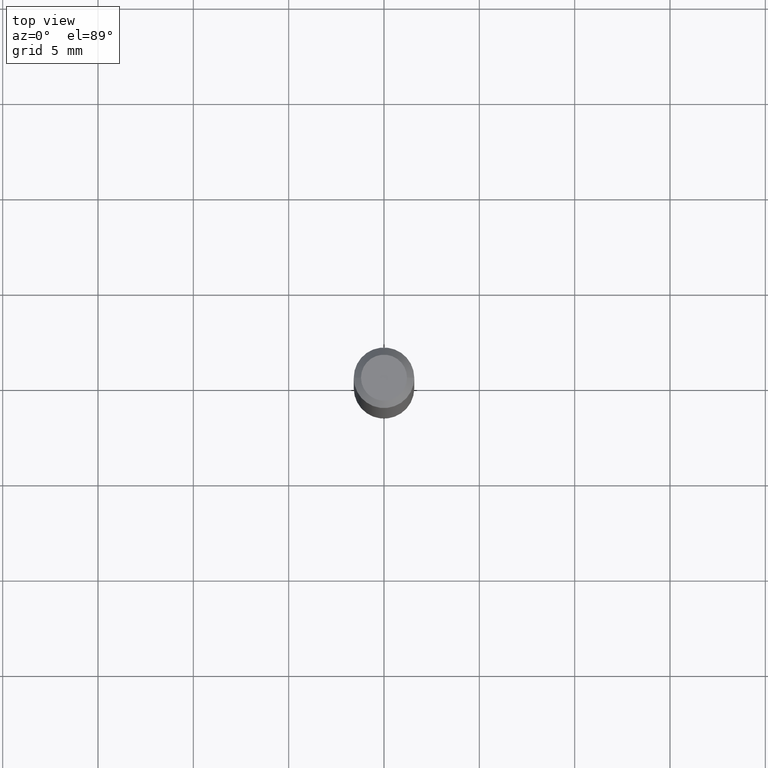
[diagram: clean part render]
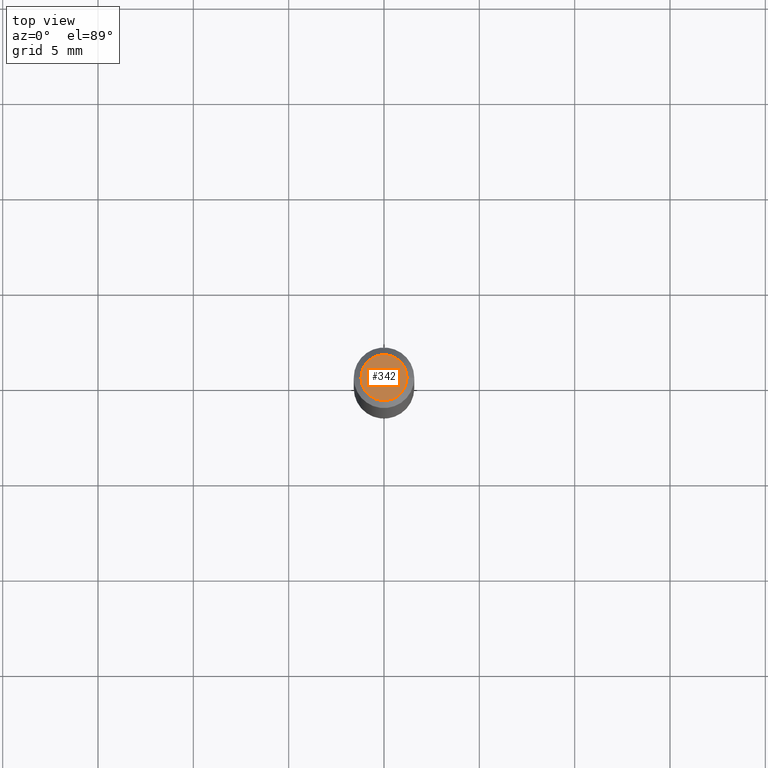
[diagram: same view with one face highlighted and labeled with its STEP entity id]
A machine part, top view. The second image highlights one B-rep face of the part: STEP entity #342.
In plain terms, the highlighted planar face has unit normal (0, -0, -1).
Its self-contained STEP definition (entity closure, byte-faithful):
#38 = AXIS2_PLACEMENT_3D ( 'NONE', #264, #339, #267 ) ;
#72 = EDGE_CURVE ( 'NONE', #228, #358, #282, .T. ) ;
#74 = CARTESIAN_POINT ( 'NONE',  ( -2.134895384516535384E-44, 3.048064803185854466E-30, 8.730004566473750758E-16 ) ) ;
#123 = EDGE_LOOP ( 'NONE', ( #417, #179 ) ) ;
#133 = EDGE_CURVE ( 'NONE', #358, #228, #343, .T. ) ;
#142 = AXIS2_PLACEMENT_3D ( 'NONE', #380, #194, #276 ) ;
#151 = DIRECTION ( 'NONE',  ( -2.445468806185136597E-29, 3.491481338843145583E-15, 1.000000000000000000 ) ) ;
#177 = CARTESIAN_POINT ( 'NONE',  ( 0.04749999999999999362, -4.035134999187563339E-16, 8.730004566473775410E-16 ) ) ;
#179 = ORIENTED_EDGE ( 'NONE', *, *, #72, .T. ) ;
#194 = DIRECTION ( 'NONE',  ( -2.445468806185136597E-29, 3.491481338843145583E-15, 1.000000000000000000 ) ) ;
#228 = VERTEX_POINT ( 'NONE', #177 ) ;
#254 = DIRECTION ( 'NONE',  ( 1.000000000000000000, -6.982962677686267499E-15, 4.852736867747366768E-29 ) ) ;
#264 = CARTESIAN_POINT ( 'NONE',  ( 3.316907271900976096E-16, 0.04749999999999999362, 2.706548647286381415E-16 ) ) ;
#267 = DIRECTION ( 'NONE',  ( -1.000000000000000000, 6.982962677686265922E-15, -4.876176775795935793E-29 ) ) ;
#271 = CARTESIAN_POINT ( 'NONE',  ( -0.04749999999999999362, 3.578768372314226283E-16, 8.730004566473726106E-16 ) ) ;
#275 = AXIS2_PLACEMENT_3D ( 'NONE', #74, #151, #254 ) ;
#276 = DIRECTION ( 'NONE',  ( 1.000000000000000000, -6.982962677686267499E-15, 4.852736867747366768E-29 ) ) ;
#282 = CIRCLE ( 'NONE', #142, 0.04749999999999999362 ) ;
#339 = DIRECTION ( 'NONE',  ( 2.438088387897960049E-29, -3.491481338843145188E-15, -1.000000000000000000 ) ) ;
#342 = ADVANCED_FACE ( 'NONE', ( #369 ), #344, .F. ) ;
#343 = CIRCLE ( 'NONE', #275, 0.04749999999999999362 ) ;
#344 = PLANE ( 'NONE',  #38 ) ;
#358 = VERTEX_POINT ( 'NONE', #271 ) ;
#369 = FACE_OUTER_BOUND ( 'NONE', #123, .T. ) ;
#380 = CARTESIAN_POINT ( 'NONE',  ( -2.134895384516535384E-44, 3.048064803185854466E-30, 8.730004566473750758E-16 ) ) ;
#417 = ORIENTED_EDGE ( 'NONE', *, *, #133, .T. ) ;